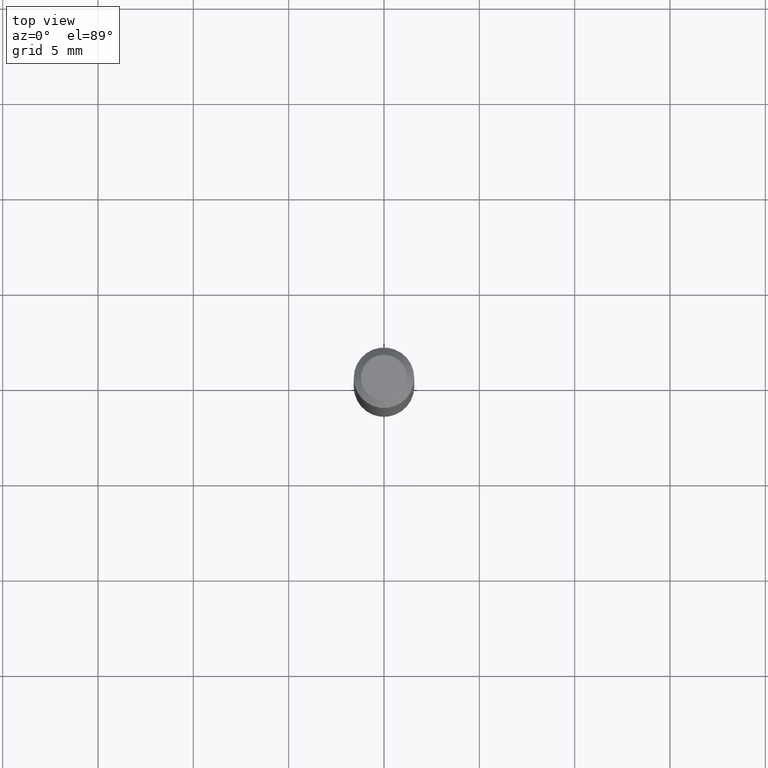
[diagram: clean part render]
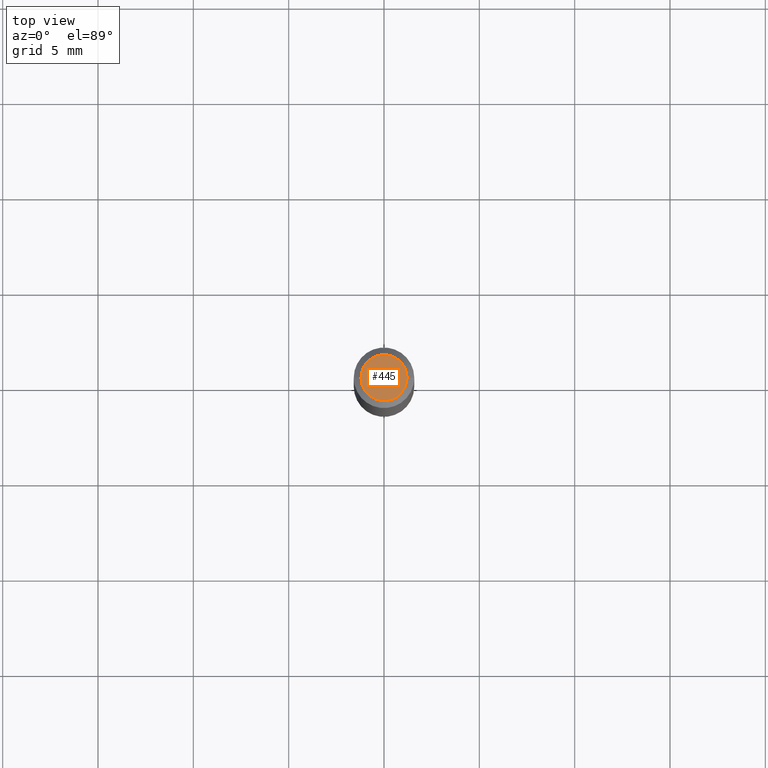
[diagram: same view with one face highlighted and labeled with its STEP entity id]
A machine part, top view. The second image highlights one B-rep face of the part: STEP entity #445.
In plain terms, the highlighted planar face has unit normal (0, -0, -1).
Its self-contained STEP definition (entity closure, byte-faithful):
#12 = CARTESIAN_POINT ( 'NONE',  ( 3.316907271900976096E-16, 0.04749999999999999362, -2.863946871395908498E-16 ) ) ;
#29 = AXIS2_PLACEMENT_3D ( 'NONE', #256, #296, #73 ) ;
#73 = DIRECTION ( 'NONE',  ( 1.000000000000000000, -6.982962677686267499E-15, 4.852736867747366768E-29 ) ) ;
#78 = FACE_OUTER_BOUND ( 'NONE', #433, .T. ) ;
#79 = EDGE_CURVE ( 'NONE', #238, #320, #457, .T. ) ;
#166 = CARTESIAN_POINT ( 'NONE',  ( 5.895992206697911344E-45, -8.417914271318623889E-31, -2.410986470890829067E-16 ) ) ;
#180 = ORIENTED_EDGE ( 'NONE', *, *, #79, .T. ) ;
#231 = PLANE ( 'NONE',  #355 ) ;
#238 = VERTEX_POINT ( 'NONE', #409 ) ;
#247 = ORIENTED_EDGE ( 'NONE', *, *, #326, .T. ) ;
#256 = CARTESIAN_POINT ( 'NONE',  ( 5.895992206697911344E-45, -8.417914271318623889E-31, -2.410986470890829067E-16 ) ) ;
#296 = DIRECTION ( 'NONE',  ( -2.445468806185136597E-29, 3.491481338843145583E-15, 1.000000000000000000 ) ) ;
#299 = CIRCLE ( 'NONE', #412, 0.04749999999999999362 ) ;
#320 = VERTEX_POINT ( 'NONE', #403 ) ;
#326 = EDGE_CURVE ( 'NONE', #320, #238, #299, .T. ) ;
#347 = DIRECTION ( 'NONE',  ( -2.445468806185136597E-29, 3.491481338843145583E-15, 1.000000000000000000 ) ) ;
#355 = AXIS2_PLACEMENT_3D ( 'NONE', #12, #441, #411 ) ;
#403 = CARTESIAN_POINT ( 'NONE',  ( -0.04749999999999999362, 3.578768372314206562E-16, -2.410986470890853225E-16 ) ) ;
#409 = CARTESIAN_POINT ( 'NONE',  ( 0.04749999999999999362, -4.035134999187582567E-16, -2.410986470890803429E-16 ) ) ;
#411 = DIRECTION ( 'NONE',  ( -1.000000000000000000, 6.982962677686265922E-15, -4.876176775795935793E-29 ) ) ;
#412 = AXIS2_PLACEMENT_3D ( 'NONE', #166, #347, #447 ) ;
#433 = EDGE_LOOP ( 'NONE', ( #247, #180 ) ) ;
#441 = DIRECTION ( 'NONE',  ( 2.438088387897960049E-29, -3.491481338843145188E-15, -1.000000000000000000 ) ) ;
#445 = ADVANCED_FACE ( 'NONE', ( #78 ), #231, .F. ) ;
#447 = DIRECTION ( 'NONE',  ( 1.000000000000000000, -6.982962677686267499E-15, 4.852736867747366768E-29 ) ) ;
#457 = CIRCLE ( 'NONE', #29, 0.04749999999999999362 ) ;